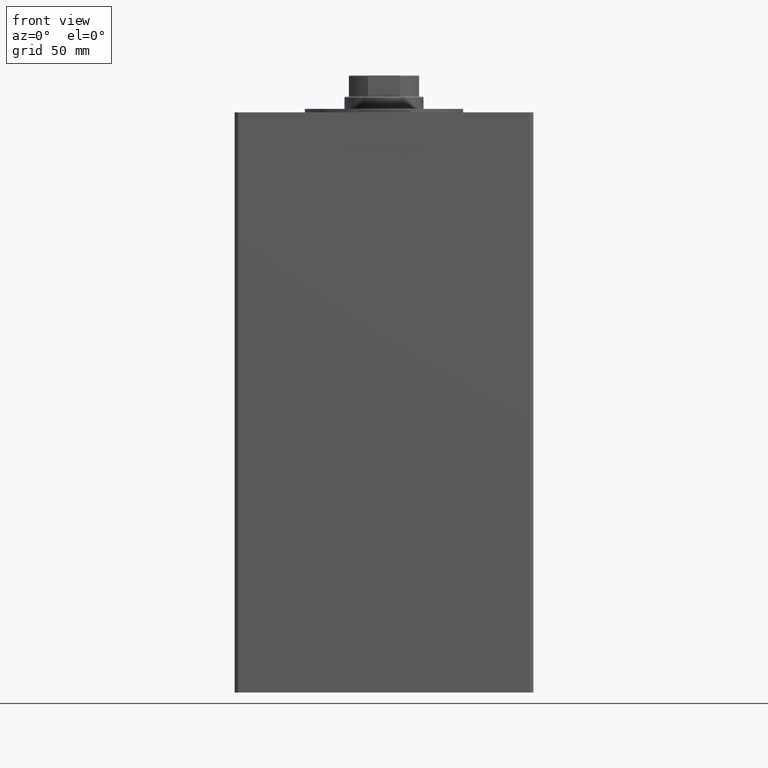
[diagram: clean part render]
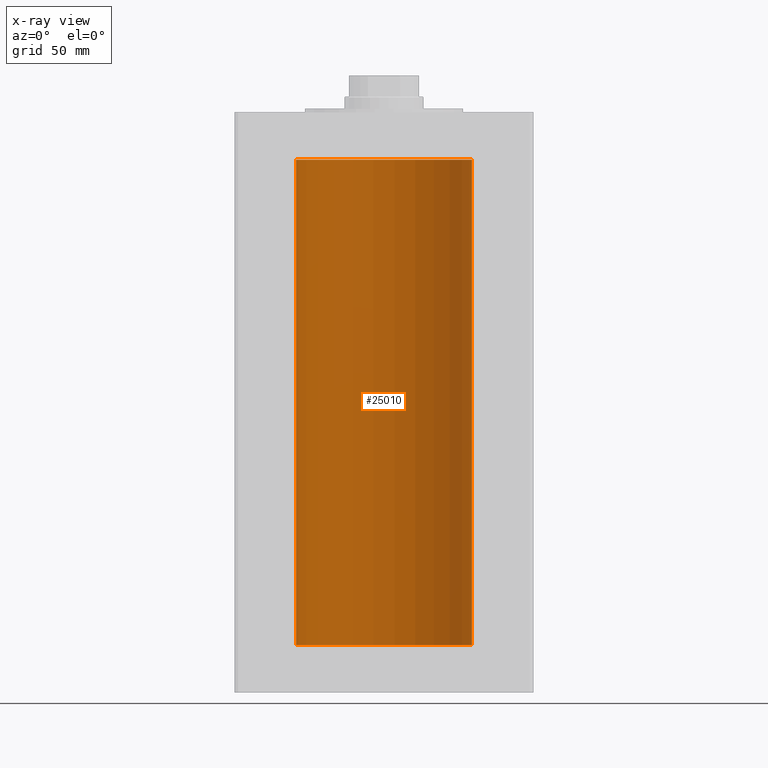
[diagram: x-ray — body ghosted, one internal face saturated and labeled with its STEP entity id]
A machine part, front view, then the same camera in x-ray: the body is ghosted and one INTERNAL B-rep face — a face not visible from any outside direction — is saturated and labeled: STEP entity #25010.
In plain terms, the highlighted cylindrical surface (partial cylindrical patch) has radius 50 mm, axis along (-0, -0, -1).
Its self-contained STEP definition (entity closure, byte-faithful):
#911 = VECTOR ( 'NONE', #22661, 1000.000000000000000 ) ;
#2516 = EDGE_CURVE ( 'NONE', #25046, #38012, #11393, .T. ) ;
#2638 = LINE ( 'NONE', #18449, #911 ) ;
#6217 = DIRECTION ( 'NONE',  ( -0.000000000000000000, 0.000000000000000000, 1.000000000000000000 ) ) ;
#6945 = DIRECTION ( 'NONE',  ( -0.000000000000000000, 0.000000000000000000, 1.000000000000000000 ) ) ;
#8587 = CARTESIAN_POINT ( 'NONE',  ( 0.000000000000000000, 0.000000000000000000, 276.0000000000000000 ) ) ;
#9916 = DIRECTION ( 'NONE',  ( 1.000000000000000000, 0.000000000000000000, 0.000000000000000000 ) ) ;
#10139 = ORIENTED_EDGE ( 'NONE', *, *, #18356, .T. ) ;
#10702 = CARTESIAN_POINT ( 'NONE',  ( 0.000000000000000000, 0.000000000000000000, 276.0000000000000000 ) ) ;
#11393 = LINE ( 'NONE', #47753, #47248 ) ;
#14394 = VERTEX_POINT ( 'NONE', #21526 ) ;
#14566 = ORIENTED_EDGE ( 'NONE', *, *, #40477, .F. ) ;
#16301 = CARTESIAN_POINT ( 'NONE',  ( -50.00000000000000000, 0.000000000000000000, 276.0000000000000000 ) ) ;
#17281 = CIRCLE ( 'NONE', #31570, 50.00000000000000000 ) ;
#18356 = EDGE_CURVE ( 'NONE', #25046, #37760, #17281, .T. ) ;
#18449 = CARTESIAN_POINT ( 'NONE',  ( -50.00000000000000000, 0.000000000000000000, 276.0000000000000000 ) ) ;
#19824 = EDGE_LOOP ( 'NONE', ( #39401, #10139, #23940, #14566 ) ) ;
#20177 = DIRECTION ( 'NONE',  ( -0.000000000000000000, -0.000000000000000000, -1.000000000000000000 ) ) ;
#21526 = CARTESIAN_POINT ( 'NONE',  ( -50.00000000000000000, 0.000000000000000000, 0.000000000000000000 ) ) ;
#22505 = DIRECTION ( 'NONE',  ( 1.000000000000000000, 0.000000000000000000, 0.000000000000000000 ) ) ;
#22661 = DIRECTION ( 'NONE',  ( -0.000000000000000000, -0.000000000000000000, -1.000000000000000000 ) ) ;
#23940 = ORIENTED_EDGE ( 'NONE', *, *, #31724, .T. ) ;
#24136 = CYLINDRICAL_SURFACE ( 'NONE', #40902, 50.00000000000000000 ) ;
#25010 = ADVANCED_FACE ( 'NONE', ( #48655 ), #24136, .F. ) ;
#25046 = VERTEX_POINT ( 'NONE', #39967 ) ;
#27474 = DIRECTION ( 'NONE',  ( -0.000000000000000000, -0.000000000000000000, -1.000000000000000000 ) ) ;
#28369 = DIRECTION ( 'NONE',  ( -1.000000000000000000, 0.000000000000000000, 0.000000000000000000 ) ) ;
#31570 = AXIS2_PLACEMENT_3D ( 'NONE', #10702, #6217, #9916 ) ;
#31724 = EDGE_CURVE ( 'NONE', #37760, #14394, #2638, .T. ) ;
#36205 = CARTESIAN_POINT ( 'NONE',  ( 50.00000000000000000, 6.123233995736766085E-15, 0.000000000000000000 ) ) ;
#37760 = VERTEX_POINT ( 'NONE', #16301 ) ;
#38012 = VERTEX_POINT ( 'NONE', #36205 ) ;
#39401 = ORIENTED_EDGE ( 'NONE', *, *, #2516, .F. ) ;
#39967 = CARTESIAN_POINT ( 'NONE',  ( 50.00000000000000000, 6.123233995736766085E-15, 276.0000000000000000 ) ) ;
#40477 = EDGE_CURVE ( 'NONE', #38012, #14394, #42285, .T. ) ;
#40902 = AXIS2_PLACEMENT_3D ( 'NONE', #8587, #20177, #28369 ) ;
#42285 = CIRCLE ( 'NONE', #45633, 50.00000000000000000 ) ;
#45633 = AXIS2_PLACEMENT_3D ( 'NONE', #46227, #6945, #22505 ) ;
#46227 = CARTESIAN_POINT ( 'NONE',  ( 0.000000000000000000, 0.000000000000000000, 0.000000000000000000 ) ) ;
#47248 = VECTOR ( 'NONE', #27474, 1000.000000000000000 ) ;
#47753 = CARTESIAN_POINT ( 'NONE',  ( 50.00000000000000000, 6.123233995736766085E-15, 276.0000000000000000 ) ) ;
#48655 = FACE_OUTER_BOUND ( 'NONE', #19824, .T. ) ;